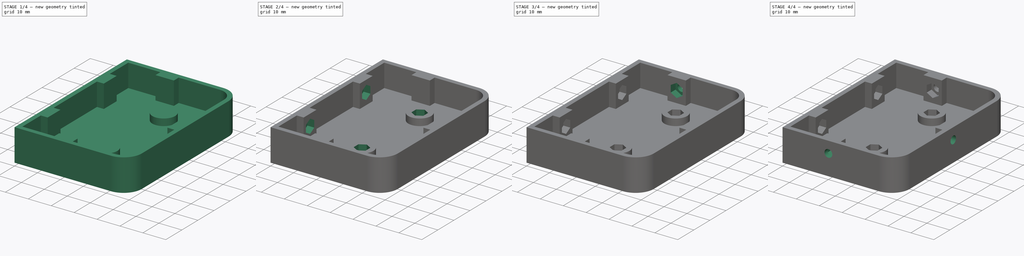
[diagram: build sequence overview — one tinted view per stage of 4, left to right]
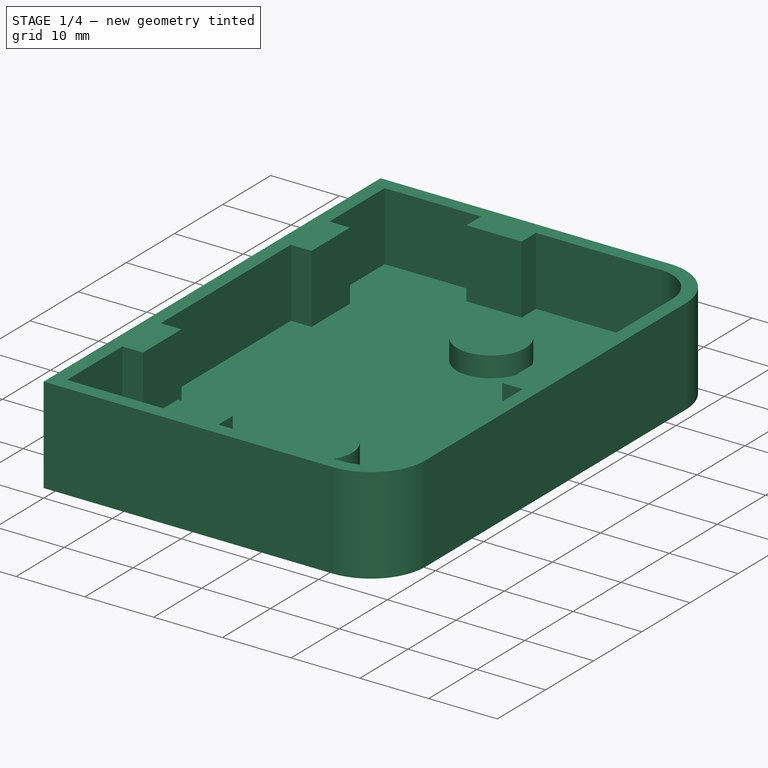
[diagram: stage 1 of 4 — iso view after this stage's code; geometry added in this stage tinted green]
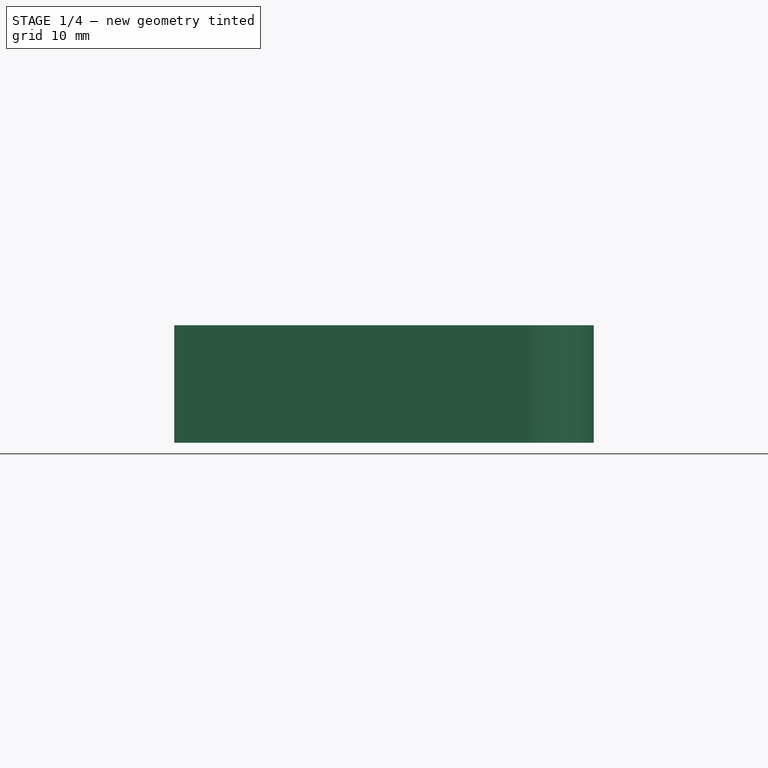
[diagram: stage 1 of 4 — front view after this stage's code; geometry added in this stage tinted green]
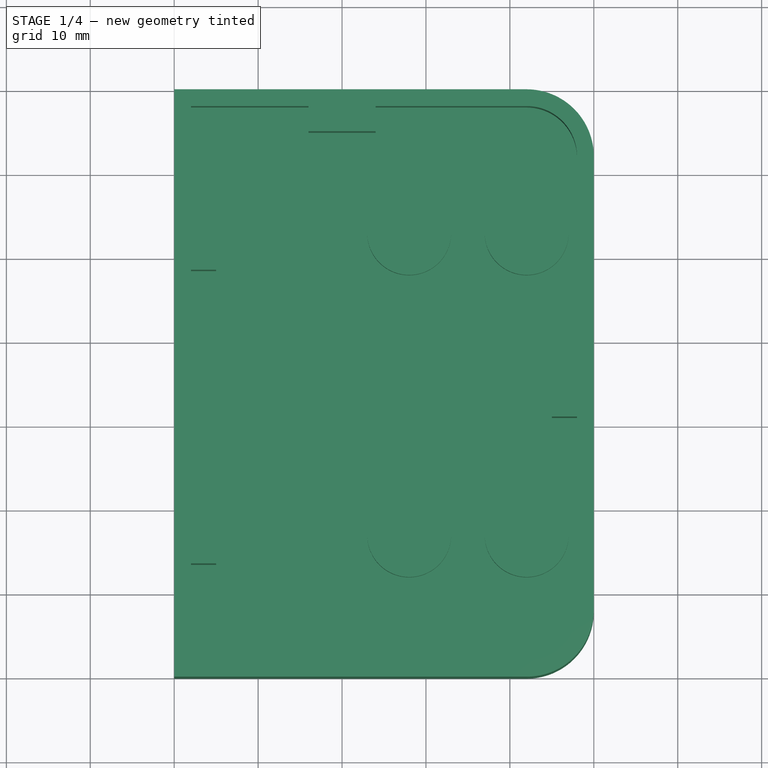
[diagram: stage 1 of 4 — top view after this stage's code; geometry added in this stage tinted green]
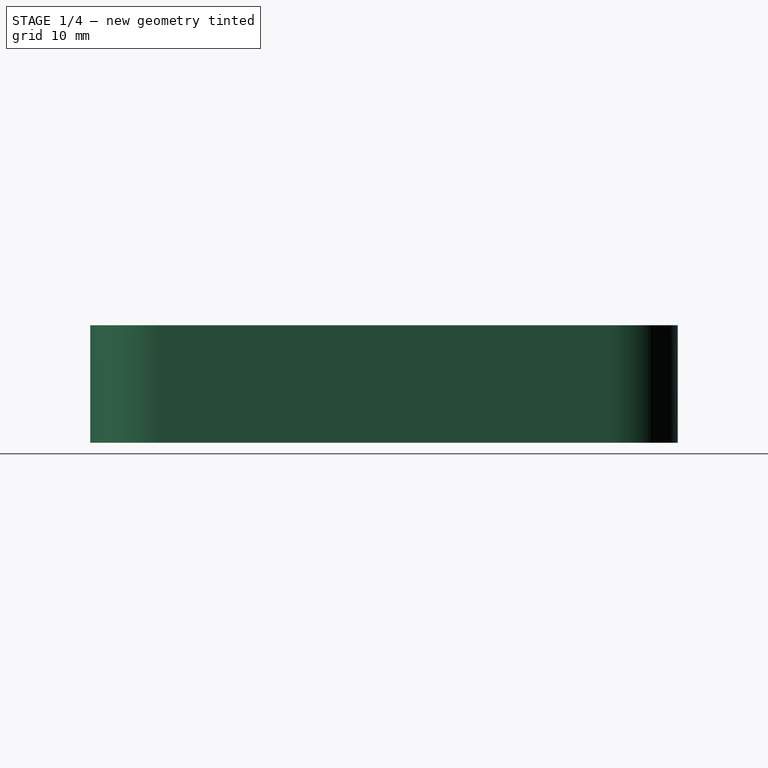
[diagram: stage 1 of 4 — right view after this stage's code; geometry added in this stage tinted green]
FCSTD DOCUMENT  (FreeCAD 0.16R5351 (Git))
Label: MotorControlChassisA
License: All rights reserved
LicenseURL: http://en.wikipedia.org/wiki/All_rights_reserved
objects: Sketcher::SketchObject×13, PartDesign::Pocket×10, PartDesign::Pad×3
note: 39 computed .brp shape members not serialized (recipe doc carries the construction recipe); baked Part::Feature solids carry a one-line shape summary decoded from their .brp

FEATURE [Sketcher::SketchObject] Sketch
  sketch-geometry (9):
    g0: LineSegment StartX=0 StartY=0 StartZ=0 EndX=42 EndY=0 EndZ=0
    g1: LineSegment [constr] StartX=42 StartY=0 StartZ=0 EndX=42 EndY=70 EndZ=0
    g2: LineSegment StartX=42 StartY=70 StartZ=0 EndX=0 EndY=70 EndZ=0
    g3: LineSegment StartX=0 StartY=70 StartZ=0 EndX=0 EndY=0 EndZ=0
    g4: ArcOfCircle CenterX=42 CenterY=62 CenterZ=0 NormalX=0 NormalY=0 NormalZ=1 Radius=8 StartAngle=0 EndAngle=1.5708
    g5: ArcOfCircle CenterX=42 CenterY=8 CenterZ=0 NormalX=0 NormalY=0 NormalZ=1 Radius=8 StartAngle=4.71239 EndAngle=6.28319
    g6: LineSegment StartX=50 StartY=62 StartZ=0 EndX=50 EndY=8 EndZ=0
    g7: LineSegment [constr] StartX=42 StartY=62 StartZ=0 EndX=50 EndY=62 EndZ=0
    g8: LineSegment [constr] StartX=42 StartY=8 StartZ=0 EndX=50 EndY=8 EndZ=0
  constraints (25):
    c: Coincident(g0,g1)
    c: Coincident(g1,g2)
    c: Coincident(g2,g3)
    c: Coincident(g3,g0)
    c: Horizontal(g0)
    c: Horizontal(g2)
    c: Vertical(g1)
    c: Vertical(g3)
    c: Coincident(g0,g-1)
    c: PointOnObject(g4,g1)
    c: Coincident(g4,g1)
    c: PointOnObject(g5,g1)
    c: Coincident(g5,g0)
    c: Coincident(g6,g4)
    c: Coincident(g6,g5)
    c: Vertical(g6)
    c: Coincident(g7,g4)
    c: Coincident(g7,g4)
    c: Horizontal(g7)
    c: Coincident(g8,g5)
    c: Coincident(g8,g5)
    c: Horizontal(g8)
    c: DistanceX(g-1,g5) = 50
    c: Radius(g5) = 8
    c: DistanceY(g3) = -70
FEATURE [PartDesign::Pad] Pad
  Length = 4
  Length2 = 100
  Sketch = -> Sketch
  Type = 0
FEATURE [Sketcher::SketchObject] Sketch001
  Placement = pos=(0,0,4) rot=(0,0,1;0rad)
  Support = -> Pad [Face8]
  sketch-geometry (41):
    g0: LineSegment StartX=0 StartY=0 StartZ=0 EndX=42 EndY=0 EndZ=0
    g1: LineSegment [constr] StartX=42 StartY=0 StartZ=0 EndX=42 EndY=70 EndZ=0
    g2: LineSegment StartX=42 StartY=70 StartZ=0 EndX=0 EndY=70 EndZ=0
    g3: LineSegment StartX=0 StartY=70 StartZ=0 EndX=0 EndY=0 EndZ=0
    g4: ArcOfCircle CenterX=42 CenterY=62 CenterZ=0 NormalX=0 NormalY=0 NormalZ=1 Radius=8 StartAngle=0 EndAngle=1.5708
    g5: ArcOfCircle CenterX=42 CenterY=8 CenterZ=0 NormalX=0 NormalY=0 NormalZ=1 Radius=8 StartAngle=4.71239 EndAngle=6.28319
    g6: LineSegment StartX=50 StartY=62 StartZ=0 EndX=50 EndY=8 EndZ=0
    g7: LineSegment [constr] StartX=42 StartY=62 StartZ=0 EndX=50 EndY=62 EndZ=0
    g8: LineSegment [constr] StartX=42 StartY=8 StartZ=0 EndX=50 EndY=8 EndZ=0
    g9: ArcOfCircle CenterX=42 CenterY=62 CenterZ=0 NormalX=0 NormalY=0 NormalZ=1 Radius=6 StartAngle=0 EndAngle=1.5708
    g10: ArcOfCircle CenterX=42 CenterY=8 CenterZ=0 NormalX=0 NormalY=0 NormalZ=1 Radius=6 StartAngle=4.71239 EndAngle=6.28319
    g11: LineSegment StartX=42 StartY=68 StartZ=0 EndX=24 EndY=68 EndZ=0
    g12: LineSegment StartX=24 StartY=68 StartZ=0 EndX=24 EndY=65 EndZ=0
    g13: LineSegment StartX=24 StartY=65 StartZ=0 EndX=16 EndY=65 EndZ=0
    g14: LineSegment StartX=16 StartY=65 StartZ=0 EndX=16 EndY=68 EndZ=0
    g15: LineSegment StartX=16 StartY=68 StartZ=0 EndX=2 EndY=68 EndZ=0
    g16: LineSegment StartX=2 StartY=68 StartZ=0 EndX=2 EndY=56.5 EndZ=0
    g17: LineSegment StartX=2 StartY=56.5 StartZ=0 EndX=5 EndY=56.5 EndZ=0
    g18: LineSegment StartX=5 StartY=56.5 StartZ=0 EndX=5 EndY=48.5 EndZ=0
    g19: LineSegment StartX=5 StartY=48.5 StartZ=0 EndX=2 EndY=48.5 EndZ=0
    g20: LineSegment StartX=2 StartY=48.5 StartZ=0 EndX=2 EndY=21.5 EndZ=0
    g21: LineSegment StartX=2 StartY=21.5 StartZ=0 EndX=5 EndY=21.5 EndZ=0
    g22: LineSegment StartX=5 StartY=21.5 StartZ=0 EndX=5 EndY=13.5 EndZ=0
    g23: LineSegment StartX=5 StartY=13.5 StartZ=0 EndX=2 EndY=13.5 EndZ=0
    g24: LineSegment StartX=2 StartY=13.5 StartZ=0 EndX=2 EndY=2 EndZ=0
    g25: LineSegment StartX=2 StartY=2 StartZ=0 EndX=16 EndY=2 EndZ=0
    g26: LineSegment StartX=16 StartY=2 StartZ=0 EndX=16 EndY=5 EndZ=0
    g27: LineSegment StartX=16 StartY=5 StartZ=0 EndX=24 EndY=5 EndZ=0
    g28: LineSegment StartX=24 StartY=5 StartZ=0 EndX=24 EndY=2 EndZ=0
    g29: LineSegment StartX=24 StartY=2 StartZ=0 EndX=42 EndY=2 EndZ=0
    g30: LineSegment StartX=48 StartY=62 StartZ=0 EndX=48 EndY=39 EndZ=0
    g31: LineSegment StartX=48 StartY=39 StartZ=0 EndX=45 EndY=39 EndZ=0
    g32: LineSegment StartX=45 StartY=39 StartZ=0 EndX=45 EndY=31 EndZ=0
    g33: LineSegment StartX=45 StartY=31 StartZ=0 EndX=48 EndY=31 EndZ=0
    g34: LineSegment StartX=48 StartY=31 StartZ=0 EndX=48 EndY=8 EndZ=0
    g35: LineSegment [constr] StartX=24 StartY=68 StartZ=0 EndX=20 EndY=68 EndZ=0
    g36: LineSegment [constr] StartX=20 StartY=68 StartZ=0 EndX=16 EndY=68 EndZ=0
    g37: LineSegment [constr] StartX=2 StartY=56.5 StartZ=0 EndX=2 EndY=52.5 EndZ=0
    g38: LineSegment [constr] StartX=2 StartY=52.5 StartZ=0 EndX=2 EndY=48.5 EndZ=0
    g39: LineSegment [constr] StartX=2 StartY=21.5 StartZ=0 EndX=2 EndY=17.5 EndZ=0
    g40: LineSegment [constr] StartX=2 StartY=17.5 StartZ=0 EndX=2 EndY=13.5 EndZ=0
  constraints (118):
    c: Coincident(g0,g1)
    c: Coincident(g1,g2)
    c: Coincident(g2,g3)
    c: Coincident(g3,g0)
    c: Horizontal(g0)
    c: Horizontal(g2)
    c: Vertical(g1)
    c: Vertical(g3)
    c: Coincident(g0,g-1)
    c: PointOnObject(g4,g1)
    c: Coincident(g4,g1)
    c: PointOnObject(g5,g1)
    c: Coincident(g5,g0)
    c: Coincident(g6,g4)
    c: Coincident(g6,g5)
    c: Vertical(g6)
    c: Coincident(g7,g4)
    c: Coincident(g7,g4)
    c: Horizontal(g7)
    c: Coincident(g8,g5)
    c: Coincident(g8,g5)
    c: Horizontal(g8)
    c: DistanceX(g-1,g5) = 50
    c: Radius(g5) = 8
    c: DistanceY(g3) = -70
    c: PointOnObject(g10,g1)
    c: PointOnObject(g9,g1)
    c: Coincident(g9,g4)
    c: PointOnObject(g9,g7)
    c: Coincident(g10,g5)
    c: PointOnObject(g10,g8)
    c: Horizontal(g11)
    c: Coincident(g11,g12)
    c: Vertical(g12)
    c: Coincident(g12,g13)
    c: Horizontal(g13)
    c: Coincident(g13,g14)
    c: Vertical(g14)
    c: Coincident(g14,g15)
    c: Horizontal(g15)
    c: Coincident(g15,g16)
    c: Vertical(g16)
    c: Coincident(g16,g17)
    c: Horizontal(g17)
    c: Coincident(g17,g18)
    c: Vertical(g18)
    c: Coincident(g18,g19)
    c: Horizontal(g19)
    c: Coincident(g19,g20)
    c: Vertical(g20)
    c: Coincident(g20,g21)
    c: Horizontal(g21)
    c: Coincident(g21,g22)
    c: Vertical(g22)
    c: Coincident(g22,g23)
    c: Horizontal(g23)
    c: Coincident(g23,g24)
    c: Vertical(g24)
    c: Coincident(g24,g25)
    c: Horizontal(g25)
    c: Coincident(g25,g26)
    c: Vertical(g26)
    c: Coincident(g26,g27)
    c: Horizontal(g27)
    c: Coincident(g27,g28)
    c: Vertical(g28)
    c: Coincident(g28,g29)
    c: Horizontal(g29)
    c: Coincident(g10,g29)
    c: Coincident(g9,g11)
    c: Equal(g12,g14)
    c: Equal(g14,g17)
    c: Equal(g17,g19)
    c: Equal(g19,g21)
    c: Equal(g21,g23)
    c: Equal(g23,g26)
    c: Equal(g26,g28)
    c: DistanceX(g-1,g24) = 2
    c: DistanceY(g-1,g24) = 2
    c: Vertical(g30)
    c: Coincident(g30,g31)
    c: Horizontal(g31)
    c: Coincident(g31,g32)
    c: Vertical(g32)
    c: Coincident(g32,g33)
    c: Horizontal(g33)
    c: Coincident(g33,g34)
    c: Vertical(g34)
    c: Coincident(g34,g10)
    c: Coincident(g9,g30)
    c: Equal(g30,g34)
    c: Equal(g12,g31)
    c: Equal(g31,g33)
    c: Equal(g32,g13)
    c: Equal(g13,g18)
    c: Equal(g18,g22)
    c: Equal(g22,g27)
    c: Equal(g16,g24)
    c: Equal(g25,g15)
    c: Coincident(g11,g35)
    c: Horizontal(g35)
    c: Coincident(g35,g36)
    c: Coincident(g36,g14)
    c: Equal(g36,g35)
    c: Coincident(g16,g37)
    c: Vertical(g37)
    c: Coincident(g37,g38)
    c: Coincident(g38,g19)
    c: Equal(g38,g37)
    c: DistanceX(g13) = -8
    c: Coincident(g20,g39)
    c: Vertical(g39)
    c: Coincident(g39,g40)
    c: Coincident(g40,g23)
    c: Equal(g40,g39)
    c: DistanceY(g37,g39) = -35
    c: DistanceX(g35) = 20
    c: DistanceY(g14) = 3
FEATURE [PartDesign::Pad] Pad001
  Length = 10
  Length2 = 100
  Sketch = -> Sketch001
  Type = 0
FEATURE [Sketcher::SketchObject] Sketch002
  Placement = pos=(0,0,4) rot=(0,0,1;0rad)
  Support = -> Pad001 [Face41]
  sketch-geometry (10):
    g0: Circle CenterX=28 CenterY=53 CenterZ=0 NormalX=0 NormalY=0 NormalZ=1 Radius=5
    g1: Circle CenterX=42 CenterY=53 CenterZ=0 NormalX=0 NormalY=0 NormalZ=1 Radius=5
    g2: Circle CenterX=28 CenterY=17 CenterZ=0 NormalX=0 NormalY=0 NormalZ=1 Radius=5
    g3: Circle CenterX=42 CenterY=17 CenterZ=0 NormalX=0 NormalY=0 NormalZ=1 Radius=5
    g4: LineSegment [constr] StartX=28 StartY=53 StartZ=0 EndX=42 EndY=53 EndZ=0
    g5: LineSegment [constr] StartX=42 StartY=53 StartZ=0 EndX=42 EndY=17 EndZ=0
    g6: LineSegment [constr] StartX=42 StartY=17 StartZ=0 EndX=28 EndY=17 EndZ=0
    g7: LineSegment [constr] StartX=28 StartY=53 StartZ=0 EndX=28 EndY=35 EndZ=0
    g8: LineSegment [constr] StartX=28 StartY=35 StartZ=0 EndX=28 EndY=17 EndZ=0
    g9: LineSegment [constr] StartX=42 StartY=17 StartZ=0 EndX=50 EndY=17 EndZ=0
  constraints (26):
    c: Coincident(g4,g0)
    c: Coincident(g4,g1)
    c: Horizontal(g4)
    c: Coincident(g4,g5)
    c: Coincident(g5,g3)
    c: Coincident(g5,g6)
    c: Coincident(g6,g2)
    c: Horizontal(g6)
    c: Vertical(g5)
    c: Equal(g1,g0)
    c: Equal(g0,g2)
    c: Equal(g2,g3)
    c: DistanceX(g4) = 14
    c: Coincident(g7,g0)
    c: Vertical(g7)
    c: Coincident(g7,g8)
    c: Coincident(g8,g2)
    c: Vertical(g8)
    c: Equal(g7,g8)
    c: DistanceY(g7) = 35
    c: DistanceY(g0,g2) = -36
    c: Coincident(g9,g3)
    c: Horizontal(g9)
    c: DistanceX(g9) = 8
    c: DistanceX(g9) = 50
    c: Radius(g2) = 5
FEATURE [PartDesign::Pad] Pad002
  Length = 3
  Length2 = 100
  Sketch = -> Sketch002
  Type = 0
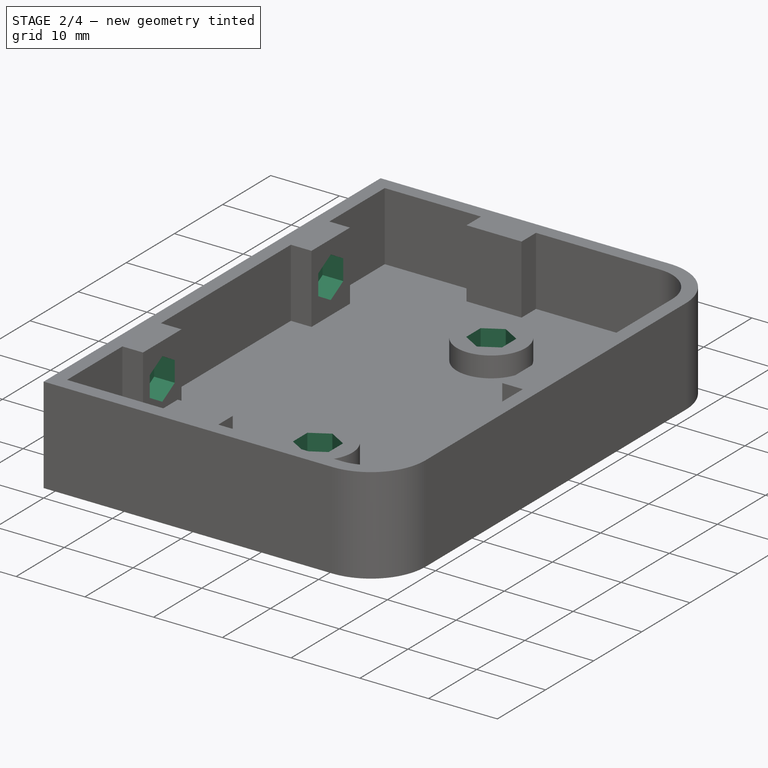
[diagram: stage 2 of 4 — iso view after this stage's code; geometry added in this stage tinted green]
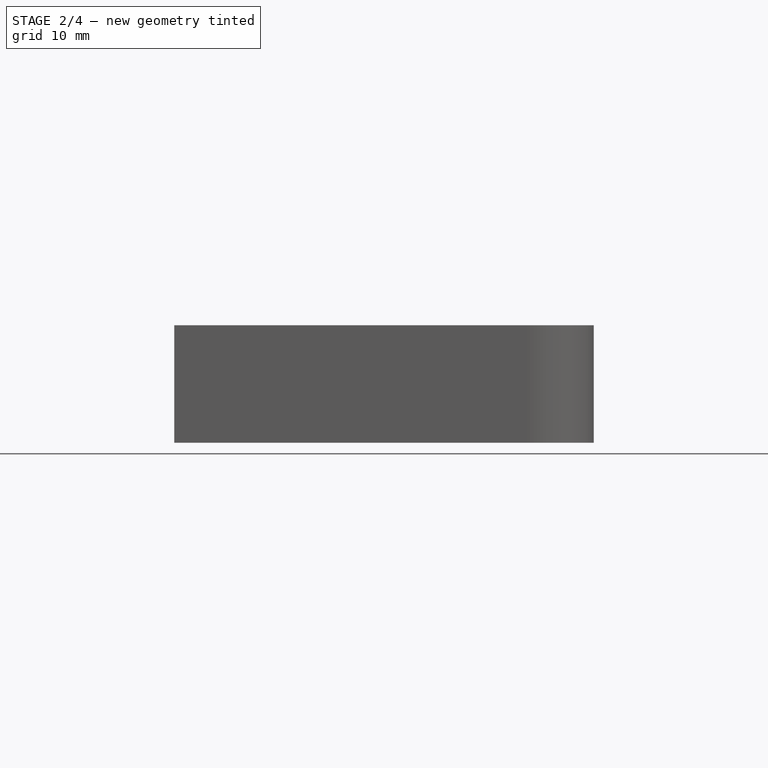
[diagram: stage 2 of 4 — front view after this stage's code; geometry added in this stage tinted green]
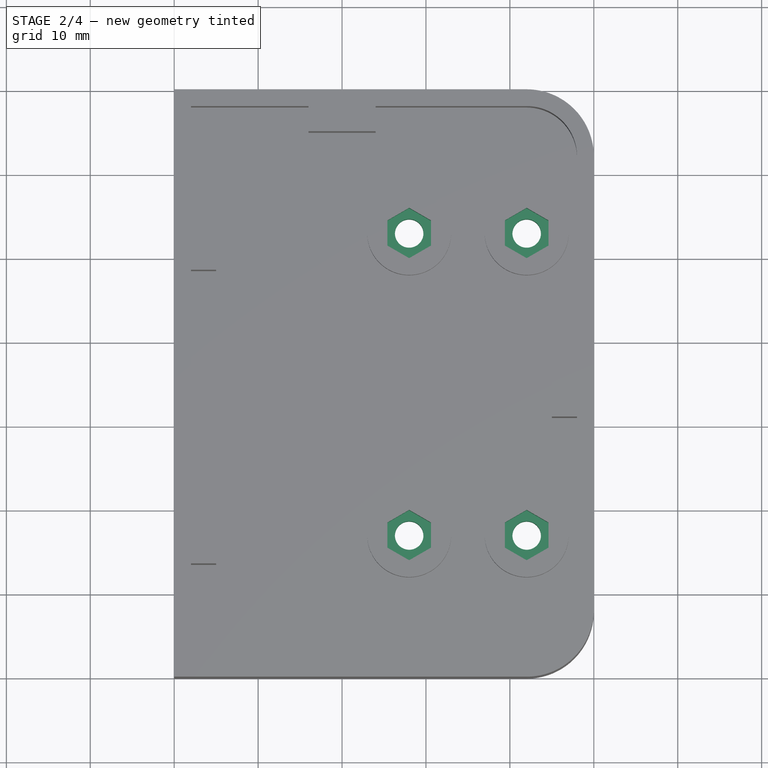
[diagram: stage 2 of 4 — top view after this stage's code; geometry added in this stage tinted green]
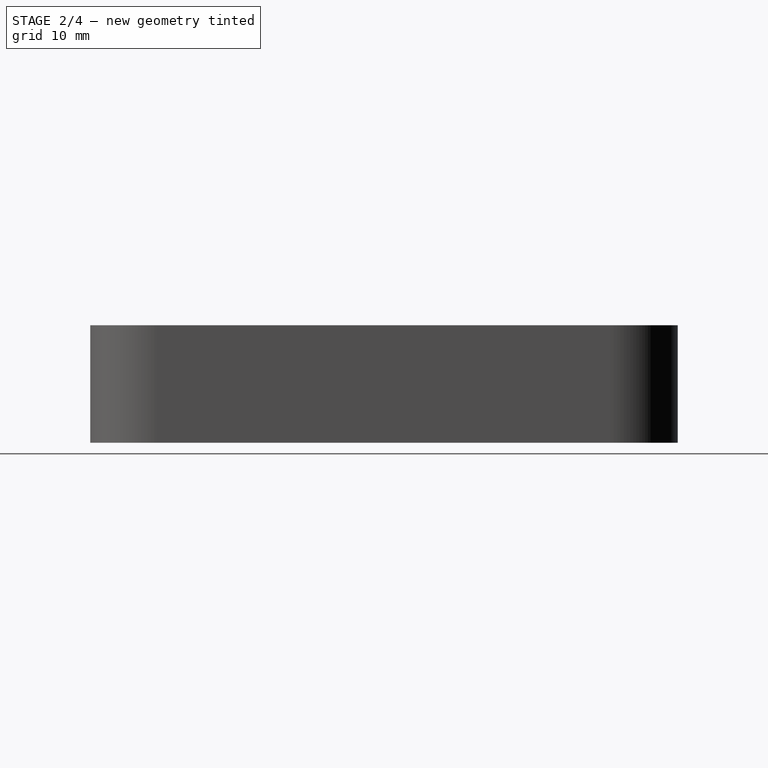
[diagram: stage 2 of 4 — right view after this stage's code; geometry added in this stage tinted green]
FEATURE [Sketcher::SketchObject] Sketch003
  Placement = pos=(0,0,7) rot=(0,0,1;0rad)
  Support = -> Pad002 [Face47]
  sketch-geometry (34):
    g0: LineSegment [constr] StartX=28 StartY=53 StartZ=0 EndX=42 EndY=53 EndZ=0
    g1: LineSegment [constr] StartX=42 StartY=53 StartZ=0 EndX=42 EndY=17 EndZ=0
    g2: LineSegment [constr] StartX=42 StartY=17 StartZ=0 EndX=28 EndY=17 EndZ=0
    g3: LineSegment [constr] StartX=28 StartY=53 StartZ=0 EndX=28 EndY=35 EndZ=0
    g4: LineSegment [constr] StartX=28 StartY=35 StartZ=0 EndX=28 EndY=17 EndZ=0
    g5: LineSegment [constr] StartX=42 StartY=17 StartZ=0 EndX=50 EndY=17 EndZ=0
    g6: LineSegment StartX=28 StartY=50 StartZ=0 EndX=30.5981 EndY=51.5 EndZ=0
    g7: LineSegment StartX=30.5981 StartY=51.5 StartZ=0 EndX=30.5981 EndY=54.5 EndZ=0
    g8: LineSegment StartX=30.5981 StartY=54.5 StartZ=0 EndX=28 EndY=56 EndZ=0
    g9: LineSegment StartX=28 StartY=56 StartZ=0 EndX=25.4019 EndY=54.5 EndZ=0
    g10: LineSegment StartX=25.4019 StartY=54.5 StartZ=0 EndX=25.4019 EndY=51.5 EndZ=0
    g11: LineSegment StartX=25.4019 StartY=51.5 StartZ=0 EndX=28 EndY=50 EndZ=0
    g12: Circle [constr] CenterX=28 CenterY=53 CenterZ=0 NormalX=0 NormalY=0 NormalZ=1 Radius=3
    g13: LineSegment StartX=30.5981 StartY=15.5 StartZ=0 EndX=30.5981 EndY=18.5 EndZ=0
    g14: LineSegment StartX=30.5981 StartY=18.5 StartZ=0 EndX=28 EndY=20 EndZ=0
    g15: LineSegment StartX=28 StartY=20 StartZ=0 EndX=25.4019 EndY=18.5 EndZ=0
    g16: LineSegment StartX=25.4019 StartY=18.5 StartZ=0 EndX=25.4019 EndY=15.5 EndZ=0
    g17: LineSegment StartX=25.4019 StartY=15.5 StartZ=0 EndX=28 EndY=14 EndZ=0
    g18: LineSegment StartX=28 StartY=14 StartZ=0 EndX=30.5981 EndY=15.5 EndZ=0
    g19: Circle [constr] CenterX=28 CenterY=17 CenterZ=0 NormalX=0 NormalY=0 NormalZ=1 Radius=3
    g20: LineSegment StartX=44.5981 StartY=51.5 StartZ=0 EndX=44.5981 EndY=54.5 EndZ=0
    g21: LineSegment StartX=44.5981 StartY=54.5 StartZ=0 EndX=42 EndY=56 EndZ=0
    g22: LineSegment StartX=42 StartY=56 StartZ=0 EndX=39.4019 EndY=54.5 EndZ=0
    g23: LineSegment StartX=39.4019 StartY=54.5 StartZ=0 EndX=39.4019 EndY=51.5 EndZ=0
    g24: LineSegment StartX=39.4019 StartY=51.5 StartZ=0 EndX=42 EndY=50 EndZ=0
    g25: LineSegment StartX=42 StartY=50 StartZ=0 EndX=44.5981 EndY=51.5 EndZ=0
    g26: Circle [constr] CenterX=42 CenterY=53 CenterZ=0 NormalX=0 NormalY=0 NormalZ=1 Radius=3
    g27: LineSegment StartX=44.5981 StartY=15.5 StartZ=0 EndX=44.5981 EndY=18.5 EndZ=0
    g28: LineSegment StartX=44.5981 StartY=18.5 StartZ=0 EndX=42 EndY=20 EndZ=0
    g29: LineSegment StartX=42 StartY=20 StartZ=0 EndX=39.4019 EndY=18.5 EndZ=0
    g30: LineSegment StartX=39.4019 StartY=18.5 StartZ=0 EndX=39.4019 EndY=15.5 EndZ=0
    g31: LineSegment StartX=39.4019 StartY=15.5 StartZ=0 EndX=42 EndY=14 EndZ=0
    g32: LineSegment StartX=42 StartY=14 StartZ=0 EndX=44.5981 EndY=15.5 EndZ=0
    g33: Circle [constr] CenterX=42 CenterY=17 CenterZ=0 NormalX=0 NormalY=0 NormalZ=1 Radius=3
  constraints (82):
    c: Horizontal(g0)
    c: Coincident(g0,g1)
    c: Coincident(g1,g2)
    c: Horizontal(g2)
    c: Vertical(g1)
    c: DistanceX(g0) = 14
    c: Vertical(g3)
    c: Coincident(g3,g4)
    c: Vertical(g4)
    c: Equal(g3,g4)
    c: DistanceY(g3) = 35
    c: Horizontal(g5)
    c: DistanceX(g5) = 8
    c: DistanceX(g5) = 50
    c: Coincident(g6,g7)
    c: Coincident(g7,g8)
    c: Coincident(g8,g9)
    c: Coincident(g9,g10)
    c: Coincident(g10,g11)
    c: Coincident(g11,g6)
    c: Equal(g6, g7-g11) x5
    c: PointOnObject(g6,g12)
    c: PointOnObject(g7,g12)
    c: PointOnObject(g8,g12)
    c: PointOnObject(g9,g12)
    c: PointOnObject(g10,g12)
    c: PointOnObject(g11,g12)
    c: Coincident(g13,g14)
    c: Coincident(g14,g15)
    c: Coincident(g15,g16)
    c: Coincident(g16,g17)
    c: Coincident(g17,g18)
    c: Coincident(g18,g13)
    c: Equal(g13, g14-g18) x5
    c: PointOnObject(g13,g19)
    c: PointOnObject(g14,g19)
    c: PointOnObject(g15,g19)
    c: PointOnObject(g16,g19)
    c: PointOnObject(g17,g19)
    c: PointOnObject(g18,g19)
    c: Coincident(g20,g21)
    c: Coincident(g21,g22)
    c: Coincident(g22,g23)
    c: Coincident(g23,g24)
    c: Coincident(g24,g25)
    c: Coincident(g25,g20)
    c: Equal(g20, g21-g25) x5
    c: PointOnObject(g20,g26)
    c: PointOnObject(g21,g26)
    c: PointOnObject(g22,g26)
    c: PointOnObject(g23,g26)
    c: PointOnObject(g24,g26)
    c: PointOnObject(g25,g26)
    c: Coincident(g27,g28)
    c: Coincident(g28,g29)
    c: Coincident(g29,g30)
    c: Coincident(g30,g31)
    c: Coincident(g31,g32)
    c: Coincident(g32,g27)
    c: Equal(g27, g28-g32) x5
    c: PointOnObject(g27,g33)
    c: PointOnObject(g28,g33)
    c: PointOnObject(g29,g33)
    c: PointOnObject(g30,g33)
    c: PointOnObject(g31,g33)
    c: PointOnObject(g32,g33)
    c: Vertical(g30)
    c: Vertical(g23)
    c: Vertical(g16)
    c: Vertical(g10)
    c: Equal(g12,g19)
    c: Equal(g19,g26)
    c: Equal(g26,g33)
    c: Radius(g33) = 3
    c: Coincident(g12,g0)
    c: Coincident(g0,g3)
    c: Coincident(g4,g2)
    c: Coincident(g5,g1)
    c: DistanceY(g0,g2) = -36
    c: Coincident(g19,g2)
    c: Coincident(g26,g0)
    c: Coincident(g33,g1)
FEATURE [PartDesign::Pocket] Pocket
  Length = 3
  Sketch = -> Sketch003
  Type = 0
FEATURE [Sketcher::SketchObject] Sketch004
  Placement = pos=(0,0,4) rot=(0,0,1;0rad)
  Support = -> Pocket [Face41]
  sketch-geometry (10):
    g0: Circle CenterX=28 CenterY=53 CenterZ=0 NormalX=0 NormalY=0 NormalZ=1 Radius=1.7
    g1: Circle CenterX=42 CenterY=53 CenterZ=0 NormalX=0 NormalY=0 NormalZ=1 Radius=1.7
    g2: Circle CenterX=28 CenterY=17 CenterZ=0 NormalX=0 NormalY=0 NormalZ=1 Radius=1.7
    g3: Circle CenterX=42 CenterY=17 CenterZ=0 NormalX=0 NormalY=0 NormalZ=1 Radius=1.7
    g4: LineSegment [constr] StartX=28 StartY=53 StartZ=0 EndX=42 EndY=53 EndZ=0
    g5: LineSegment [constr] StartX=42 StartY=53 StartZ=0 EndX=42 EndY=17 EndZ=0
    g6: LineSegment [constr] StartX=42 StartY=17 StartZ=0 EndX=28 EndY=17 EndZ=0
    g7: LineSegment [constr] StartX=28 StartY=53 StartZ=0 EndX=28 EndY=35 EndZ=0
    g8: LineSegment [constr] StartX=28 StartY=35 StartZ=0 EndX=28 EndY=17 EndZ=0
    g9: LineSegment [constr] StartX=42 StartY=17 StartZ=0 EndX=50 EndY=17 EndZ=0
  constraints (26):
    c: Coincident(g4,g0)
    c: Coincident(g4,g1)
    c: Horizontal(g4)
    c: Coincident(g4,g5)
    c: Coincident(g5,g3)
    c: Coincident(g5,g6)
    c: Coincident(g6,g2)
    c: Horizontal(g6)
    c: Vertical(g5)
    c: Equal(g1,g0)
    c: Equal(g0,g2)
    c: Equal(g2,g3)
    c: DistanceX(g4) = 14
    c: Coincident(g7,g0)
    c: Vertical(g7)
    c: Coincident(g7,g8)
    c: Coincident(g8,g2)
    c: Vertical(g8)
    c: Equal(g7,g8)
    c: DistanceY(g7) = 35
    c: DistanceY(g0,g2) = -36
    c: Coincident(g9,g3)
    c: Horizontal(g9)
    c: DistanceX(g9) = 8
    c: DistanceX(g9) = 50
    c: Radius(g2) = 1.7
FEATURE [PartDesign::Pocket] Pocket001
  Length = 4
  Sketch = -> Sketch004
  Type = 0
FEATURE [Sketcher::SketchObject] Sketch005
  Placement = pos=(5,0,0) rot=(0.57735,0.57735,0.57735;2.0944rad)
  Support = -> Pocket001 [Face59]
  sketch-geometry (17):
    g0: LineSegment StartX=20.0981 StartY=7.5 StartZ=0 EndX=20.0981 EndY=10.5 EndZ=0
    g1: LineSegment StartX=20.0981 StartY=10.5 StartZ=0 EndX=17.5 EndY=12 EndZ=0
    g2: LineSegment StartX=17.5 StartY=12 StartZ=0 EndX=14.9019 EndY=10.5 EndZ=0
    g3: LineSegment StartX=14.9019 StartY=10.5 StartZ=0 EndX=14.9019 EndY=7.5 EndZ=0
    g4: LineSegment StartX=14.9019 StartY=7.5 StartZ=0 EndX=17.5 EndY=6 EndZ=0
    g5: LineSegment StartX=17.5 StartY=6 StartZ=0 EndX=20.0981 EndY=7.5 EndZ=0
    g6: Circle [constr] CenterX=17.5 CenterY=9 CenterZ=0 NormalX=0 NormalY=0 NormalZ=1 Radius=3
    g7: LineSegment StartX=55.0981 StartY=7.5 StartZ=0 EndX=55.0981 EndY=10.5 EndZ=0
    g8: LineSegment StartX=55.0981 StartY=10.5 StartZ=0 EndX=52.5 EndY=12 EndZ=0
    g9: LineSegment StartX=52.5 StartY=12 StartZ=0 EndX=49.9019 EndY=10.5 EndZ=0
    g10: LineSegment StartX=49.9019 StartY=10.5 StartZ=0 EndX=49.9019 EndY=7.5 EndZ=0
    g11: LineSegment StartX=49.9019 StartY=7.5 StartZ=0 EndX=52.5 EndY=6 EndZ=0
    g12: LineSegment StartX=52.5 StartY=6 StartZ=0 EndX=55.0981 EndY=7.5 EndZ=0
    g13: Circle [constr] CenterX=52.5 CenterY=9 CenterZ=0 NormalX=0 NormalY=0 NormalZ=1 Radius=3
    g14: LineSegment [constr] StartX=0 StartY=9 StartZ=0 EndX=17.5 EndY=9 EndZ=0
    g15: LineSegment [constr] StartX=17.5 StartY=9 StartZ=0 EndX=52.5 EndY=9 EndZ=0
    g16: LineSegment [constr] StartX=52.5 StartY=9 StartZ=0 EndX=70 EndY=9 EndZ=0
  constraints (42):
    c: Coincident(g0,g1)
    c: Coincident(g1,g2)
    c: Coincident(g2,g3)
    c: Coincident(g3,g4)
    c: Coincident(g4,g5)
    c: Coincident(g5,g0)
    c: Equal(g0, g1-g5) x5
    c: PointOnObject(g0,g6)
    c: PointOnObject(g1,g6)
    c: PointOnObject(g2,g6)
    c: PointOnObject(g3,g6)
    c: PointOnObject(g4,g6)
    c: PointOnObject(g5,g6)
    c: Coincident(g7,g8)
    c: Coincident(g8,g9)
    c: Coincident(g9,g10)
    c: Coincident(g10,g11)
    c: Coincident(g11,g12)
    c: Coincident(g12,g7)
    c: Equal(g7, g8-g12) x5
    c: PointOnObject(g7,g13)
    c: PointOnObject(g8,g13)
    c: PointOnObject(g9,g13)
    c: PointOnObject(g10,g13)
    c: PointOnObject(g11,g13)
    c: PointOnObject(g12,g13)
    c: PointOnObject(g14,g-2)
    c: Horizontal(g14)
    c: Coincident(g14,g15)
    c: Horizontal(g15)
    c: Coincident(g15,g16)
    c: Horizontal(g16)
    c: Equal(g16,g14)
    c: DistanceX(g15) = 35
    c: DistanceX(g14,g16) = 70
    c: Coincident(g15,g13)
    c: Coincident(g14,g6)
    c: Vertical(g0)
    c: Vertical(g10)
    c: Equal(g13,g6)
    c: Radius(g6) = 3
    c: DistanceY(g14) = 9
FEATURE [PartDesign::Pocket] Pocket002
  Length = 3
  Sketch = -> Sketch005
  Type = 0
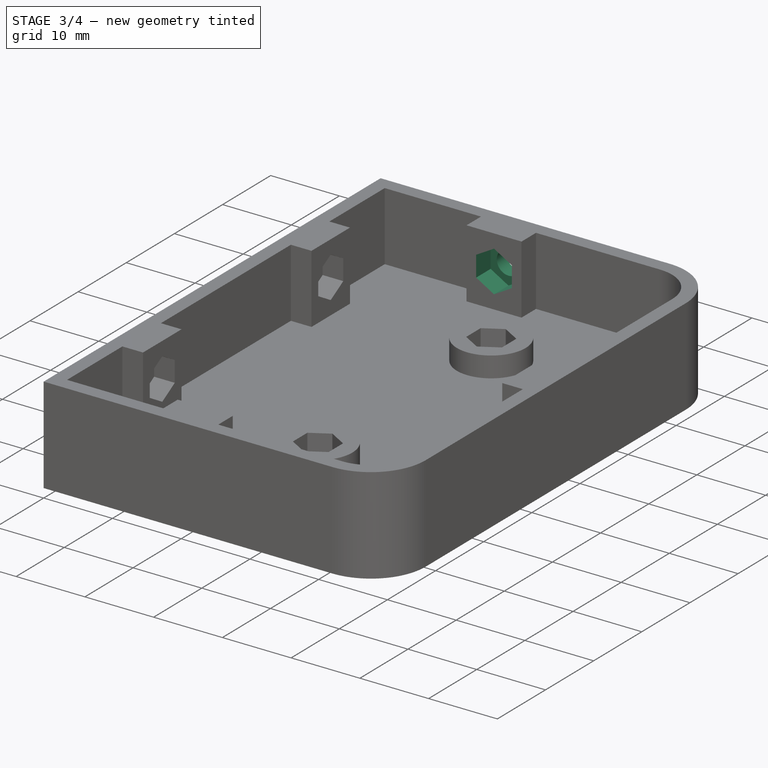
[diagram: stage 3 of 4 — iso view after this stage's code; geometry added in this stage tinted green]
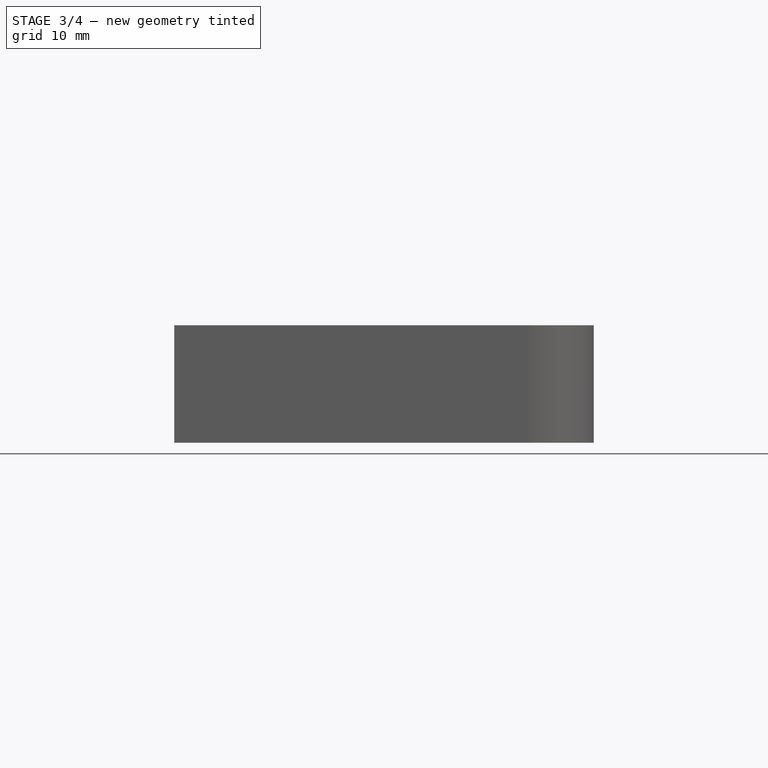
[diagram: stage 3 of 4 — front view after this stage's code; geometry added in this stage tinted green]
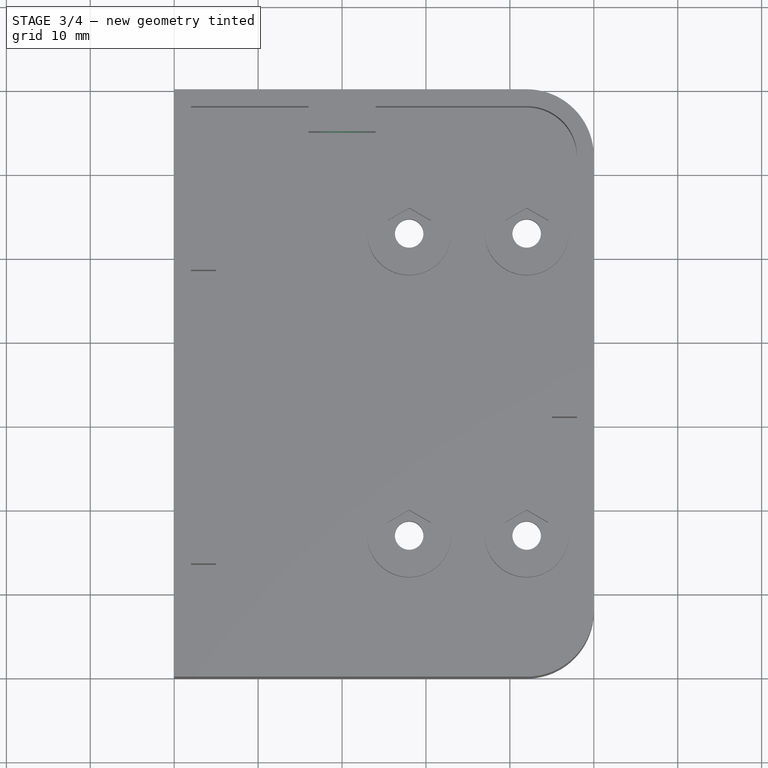
[diagram: stage 3 of 4 — top view after this stage's code; geometry added in this stage tinted green]
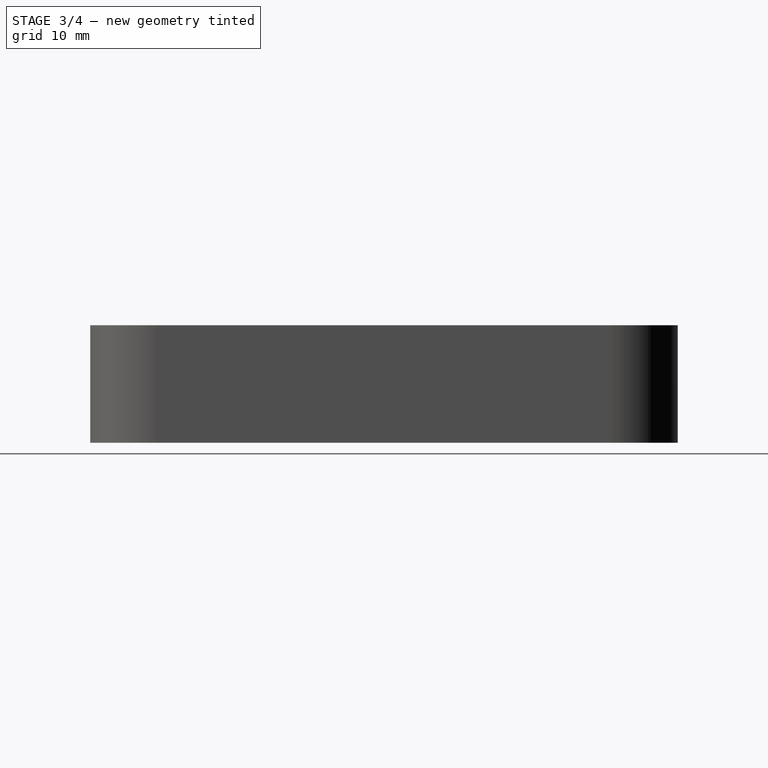
[diagram: stage 3 of 4 — right view after this stage's code; geometry added in this stage tinted green]
FEATURE [Sketcher::SketchObject] Sketch006
  Placement = pos=(2,0,0) rot=(0.57735,0.57735,0.57735;2.0944rad)
  Support = -> Pocket002 [Face95]
  sketch-geometry (5):
    g0: Circle CenterX=17.5 CenterY=9 CenterZ=0 NormalX=0 NormalY=0 NormalZ=1 Radius=1.7
    g1: Circle CenterX=52.5 CenterY=9 CenterZ=0 NormalX=0 NormalY=0 NormalZ=1 Radius=1.7
    g2: LineSegment [constr] StartX=0 StartY=9 StartZ=0 EndX=17.5 EndY=9 EndZ=0
    g3: LineSegment [constr] StartX=17.5 StartY=9 StartZ=0 EndX=52.5 EndY=9 EndZ=0
    g4: LineSegment [constr] StartX=52.5 StartY=9 StartZ=0 EndX=70 EndY=9 EndZ=0
  constraints (14):
    c: PointOnObject(g2,g-2)
    c: Horizontal(g2)
    c: Coincident(g2,g3)
    c: Horizontal(g3)
    c: Coincident(g3,g4)
    c: Horizontal(g4)
    c: Equal(g4,g2)
    c: DistanceX(g3) = 35
    c: DistanceX(g2,g4) = 70
    c: Coincident(g3,g1)
    c: Coincident(g2,g0)
    c: Equal(g1,g0)
    c: Radius(g0) = 1.7
    c: DistanceY(g2) = 9
FEATURE [PartDesign::Pocket] Pocket003
  Length = 2
  Sketch = -> Sketch006
  Type = 0
FEATURE [Sketcher::SketchObject] Sketch007
  Placement = pos=(0,65,0) rot=(1,0,0;1.5708rad)
  Support = -> Pocket003 [Face52]
  sketch-geometry (9):
    g0: LineSegment [constr] StartX=0 StartY=9 StartZ=0 EndX=20 EndY=9 EndZ=0
    g1: LineSegment [constr] StartX=20 StartY=9 StartZ=0 EndX=50 EndY=9 EndZ=0
    g2: LineSegment StartX=22.5981 StartY=7.5 StartZ=0 EndX=22.5981 EndY=10.5 EndZ=0
    g3: LineSegment StartX=22.5981 StartY=10.5 StartZ=0 EndX=20 EndY=12 EndZ=0
    g4: LineSegment StartX=20 StartY=12 StartZ=0 EndX=17.4019 EndY=10.5 EndZ=0
    g5: LineSegment StartX=17.4019 StartY=10.5 StartZ=0 EndX=17.4019 EndY=7.5 EndZ=0
    g6: LineSegment StartX=17.4019 StartY=7.5 StartZ=0 EndX=20 EndY=6 EndZ=0
    g7: LineSegment StartX=20 StartY=6 StartZ=0 EndX=22.5981 EndY=7.5 EndZ=0
    g8: Circle [constr] CenterX=20 CenterY=9 CenterZ=0 NormalX=0 NormalY=0 NormalZ=1 Radius=3
  constraints (23):
    c: PointOnObject(g0,g-2)
    c: Horizontal(g0)
    c: Coincident(g0,g1)
    c: Horizontal(g1)
    c: DistanceX(g1) = 50
    c: DistanceX(g0) = 20
    c: DistanceY(g0) = 9
    c: Coincident(g2,g3)
    c: Coincident(g3,g4)
    c: Coincident(g4,g5)
    c: Coincident(g5,g6)
    c: Coincident(g6,g7)
    c: Coincident(g7,g2)
    c: Equal(g2, g3-g7) x5
    c: PointOnObject(g2,g8)
    c: PointOnObject(g3,g8)
    c: PointOnObject(g4,g8)
    c: PointOnObject(g5,g8)
    c: PointOnObject(g6,g8)
    c: PointOnObject(g7,g8)
    c: Coincident(g8,g0)
    c: Vertical(g5)
    c: Radius(g8) = 3
FEATURE [PartDesign::Pocket] Pocket004
  Length = 3
  Sketch = -> Sketch007
  Type = 0
FEATURE [Sketcher::SketchObject] Sketch008
  Placement = pos=(0,68,0) rot=(1,0,0;1.5708rad)
  Support = -> Pocket004 [Face104]
  sketch-geometry (3):
    g0: LineSegment [constr] StartX=0 StartY=9 StartZ=0 EndX=20 EndY=9 EndZ=0
    g1: LineSegment [constr] StartX=20 StartY=9 StartZ=0 EndX=50 EndY=9 EndZ=0
    g2: Circle CenterX=20 CenterY=9 CenterZ=0 NormalX=0 NormalY=0 NormalZ=1 Radius=1.7
  constraints (9):
    c: PointOnObject(g0,g-2)
    c: Horizontal(g0)
    c: Coincident(g0,g1)
    c: Horizontal(g1)
    c: DistanceX(g1) = 50
    c: DistanceX(g0) = 20
    c: DistanceY(g0) = 9
    c: Coincident(g2,g0)
    c: Radius(g2) = 1.7
FEATURE [PartDesign::Pocket] Pocket005
  Length = 2
  Sketch = -> Sketch008
  Type = 0
FEATURE [Sketcher::SketchObject] Sketch009
  Placement = pos=(45,0,0) rot=(0.57735,-0.57735,-0.57735;2.0944rad)
  Support = -> Pocket005 [Face73]
  sketch-geometry (9):
    g0: LineSegment [constr] StartX=0 StartY=9 StartZ=0 EndX=-35 EndY=9 EndZ=0
    g1: LineSegment [constr] StartX=-35 StartY=9 StartZ=0 EndX=-70 EndY=9 EndZ=0
    g2: LineSegment StartX=-37.5981 StartY=7.5 StartZ=0 EndX=-35 EndY=6 EndZ=0
    g3: LineSegment StartX=-35 StartY=6 StartZ=0 EndX=-32.4019 EndY=7.5 EndZ=0
    g4: LineSegment StartX=-32.4019 StartY=7.5 StartZ=0 EndX=-32.4019 EndY=10.5 EndZ=0
    g5: LineSegment StartX=-32.4019 StartY=10.5 StartZ=0 EndX=-35 EndY=12 EndZ=0
    g6: LineSegment StartX=-35 StartY=12 StartZ=0 EndX=-37.5981 EndY=10.5 EndZ=0
    g7: LineSegment StartX=-37.5981 StartY=10.5 StartZ=0 EndX=-37.5981 EndY=7.5 EndZ=0
    g8: Circle [constr] CenterX=-35 CenterY=9 CenterZ=0 NormalX=0 NormalY=0 NormalZ=1 Radius=3
  constraints (23):
    c: PointOnObject(g0,g-2)
    c: Horizontal(g0)
    c: Coincident(g0,g1)
    c: Horizontal(g1)
    c: Equal(g0,g1)
    c: DistanceX(g1,g0) = 70
    c: DistanceY(g0) = 9
    c: Coincident(g2,g3)
    c: Coincident(g3,g4)
    c: Coincident(g4,g5)
    c: Coincident(g5,g6)
    c: Coincident(g6,g7)
    c: Coincident(g7,g2)
    c: Equal(g2, g3-g7) x5
    c: PointOnObject(g2,g8)
    c: PointOnObject(g3,g8)
    c: PointOnObject(g4,g8)
    c: PointOnObject(g5,g8)
    c: PointOnObject(g6,g8)
    c: PointOnObject(g7,g8)
    c: Coincident(g8,g0)
    c: Vertical(g7)
    c: Radius(g8) = 3
FEATURE [PartDesign::Pocket] Pocket006
  Length = 3
  Sketch = -> Sketch009
  Type = 0
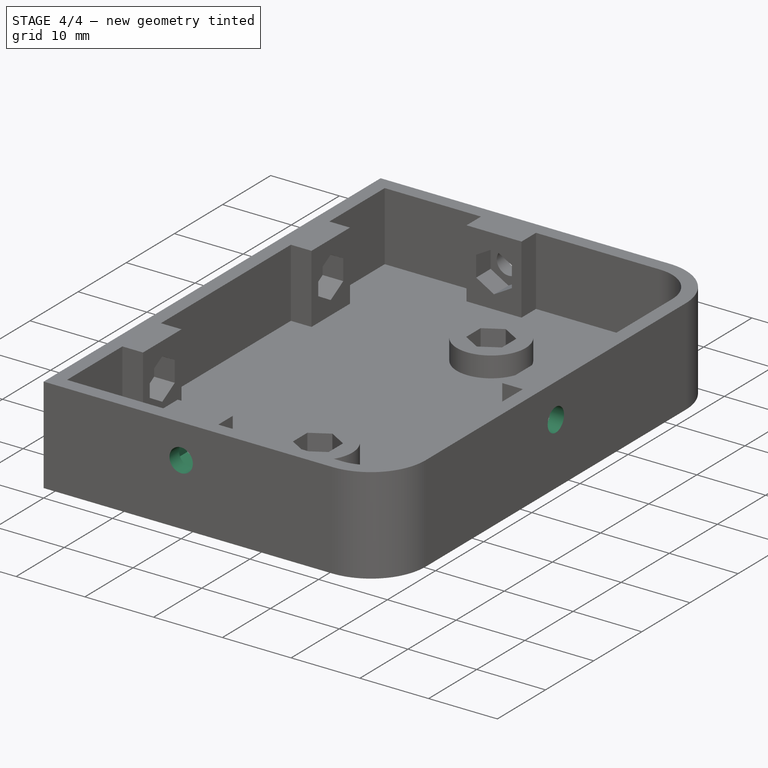
[diagram: stage 4 of 4 — iso view after this stage's code; geometry added in this stage tinted green]
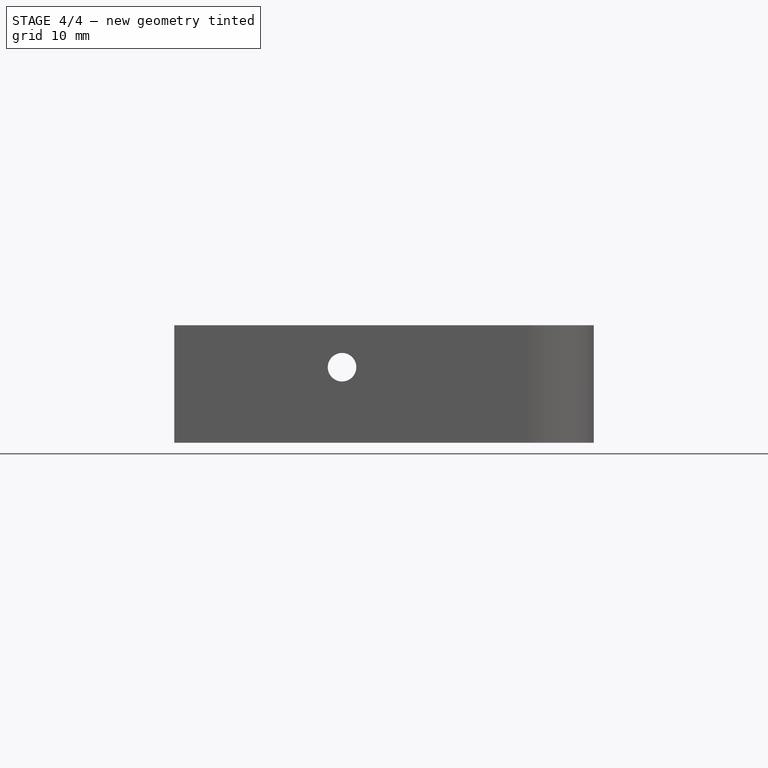
[diagram: stage 4 of 4 — front view after this stage's code; geometry added in this stage tinted green]
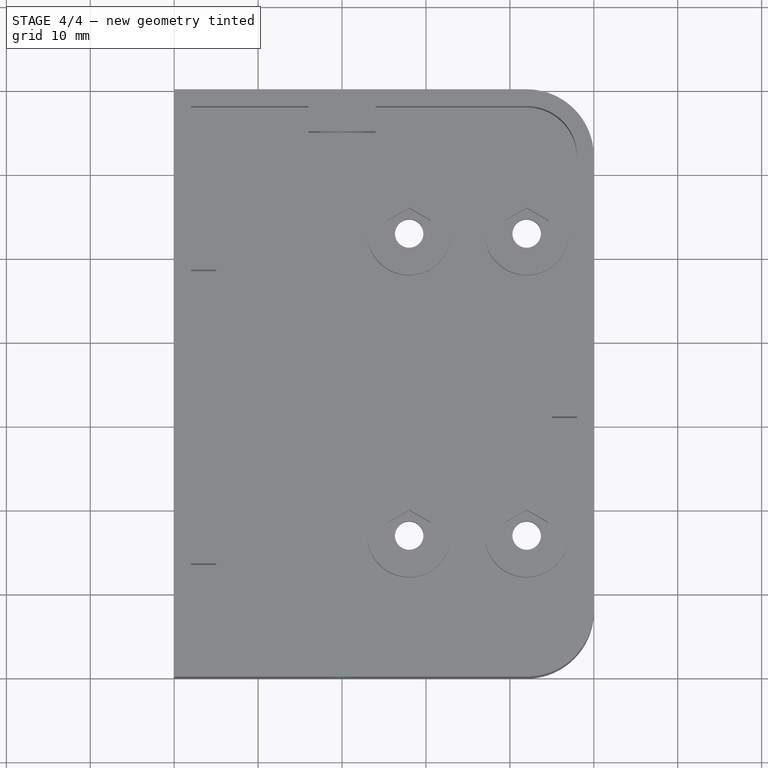
[diagram: stage 4 of 4 — top view after this stage's code; geometry added in this stage tinted green]
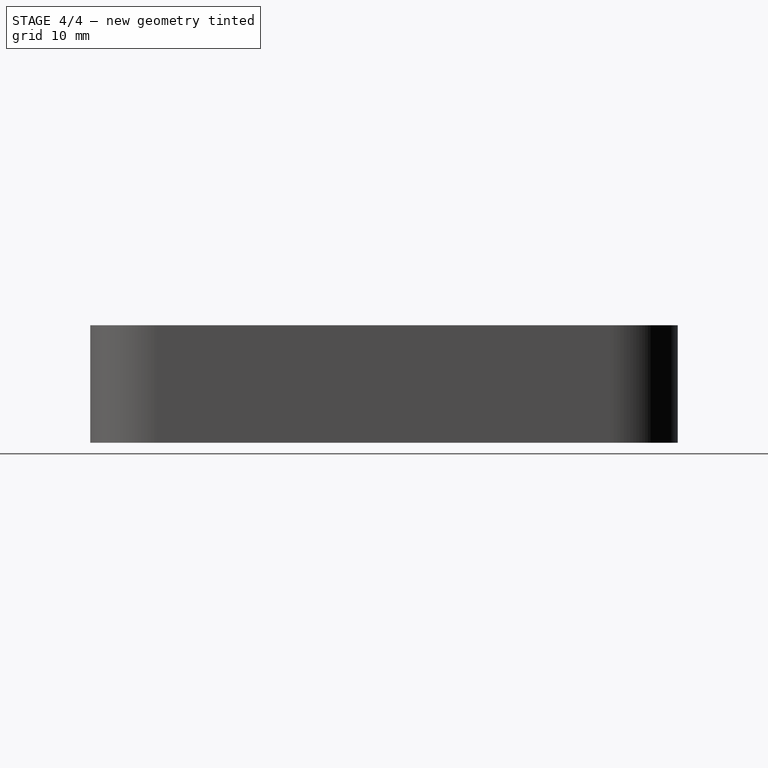
[diagram: stage 4 of 4 — right view after this stage's code; geometry added in this stage tinted green]
FEATURE [Sketcher::SketchObject] Sketch010
  Placement = pos=(48,0,0) rot=(0.57735,-0.57735,-0.57735;2.0944rad)
  Support = -> Pocket006 [Face112]
  sketch-geometry (3):
    g0: LineSegment [constr] StartX=0 StartY=9 StartZ=0 EndX=-35 EndY=9 EndZ=0
    g1: LineSegment [constr] StartX=-35 StartY=9 StartZ=0 EndX=-70 EndY=9 EndZ=0
    g2: Circle CenterX=-35 CenterY=9 CenterZ=0 NormalX=0 NormalY=0 NormalZ=1 Radius=1.7
  constraints (9):
    c: PointOnObject(g0,g-2)
    c: Horizontal(g0)
    c: Coincident(g0,g1)
    c: Horizontal(g1)
    c: Equal(g0,g1)
    c: DistanceX(g1,g0) = 70
    c: DistanceY(g0) = 9
    c: Coincident(g2,g0)
    c: Radius(g2) = 1.7
FEATURE [PartDesign::Pocket] Pocket007
  Length = 2
  Sketch = -> Sketch010
  Type = 0
FEATURE [Sketcher::SketchObject] Sketch011
  Placement = pos=(0,5,0) rot=(0,0.707107,0.707107;3.14159rad)
  Support = -> Pocket007 [Face68]
  sketch-geometry (9):
    g0: LineSegment [constr] StartX=0 StartY=9 StartZ=0 EndX=-20 EndY=9 EndZ=0
    g1: LineSegment [constr] StartX=-20 StartY=9 StartZ=0 EndX=-50 EndY=9 EndZ=0
    g2: LineSegment StartX=-17.4019 StartY=7.5 StartZ=0 EndX=-17.4019 EndY=10.5 EndZ=0
    g3: LineSegment StartX=-17.4019 StartY=10.5 StartZ=0 EndX=-20 EndY=12 EndZ=0
    g4: LineSegment StartX=-20 StartY=12 StartZ=0 EndX=-22.5981 EndY=10.5 EndZ=0
    g5: LineSegment StartX=-22.5981 StartY=10.5 StartZ=0 EndX=-22.5981 EndY=7.5 EndZ=0
    g6: LineSegment StartX=-22.5981 StartY=7.5 StartZ=0 EndX=-20 EndY=6 EndZ=0
    g7: LineSegment StartX=-20 StartY=6 StartZ=0 EndX=-17.4019 EndY=7.5 EndZ=0
    g8: Circle [constr] CenterX=-20 CenterY=9 CenterZ=0 NormalX=0 NormalY=0 NormalZ=1 Radius=3
  constraints (23):
    c: PointOnObject(g0,g-2)
    c: Horizontal(g0)
    c: Coincident(g0,g1)
    c: Horizontal(g1)
    c: DistanceX(g0) = -20
    c: DistanceX(g1) = -50
    c: Coincident(g2,g3)
    c: Coincident(g3,g4)
    c: Coincident(g4,g5)
    c: Coincident(g5,g6)
    c: Coincident(g6,g7)
    c: Coincident(g7,g2)
    c: Equal(g2, g3-g7) x5
    c: PointOnObject(g2,g8)
    c: PointOnObject(g3,g8)
    c: PointOnObject(g4,g8)
    c: PointOnObject(g5,g8)
    c: PointOnObject(g6,g8)
    c: PointOnObject(g7,g8)
    c: Coincident(g8,g0)
    c: Vertical(g5)
    c: Radius(g8) = 3
    c: DistanceY(g0) = 9
FEATURE [PartDesign::Pocket] Pocket008
  Length = 3
  Sketch = -> Sketch011
  Type = 0
FEATURE [Sketcher::SketchObject] Sketch012
  Placement = pos=(0,2,0) rot=(0,0.707107,0.707107;3.14159rad)
  Support = -> Pocket008 [Face120]
  sketch-geometry (3):
    g0: LineSegment [constr] StartX=0 StartY=9 StartZ=0 EndX=-20 EndY=9 EndZ=0
    g1: LineSegment [constr] StartX=-20 StartY=9 StartZ=0 EndX=-50 EndY=9 EndZ=0
    g2: Circle CenterX=-20 CenterY=9 CenterZ=0 NormalX=0 NormalY=0 NormalZ=1 Radius=1.7
  constraints (9):
    c: PointOnObject(g0,g-2)
    c: Horizontal(g0)
    c: Coincident(g0,g1)
    c: Horizontal(g1)
    c: DistanceX(g0) = -20
    c: DistanceX(g1) = -50
    c: Coincident(g2,g0)
    c: Radius(g2) = 1.7
    c: DistanceY(g0) = 9
FEATURE [PartDesign::Pocket] Pocket009
  Length = 2
  Sketch = -> Sketch012
  Type = 0
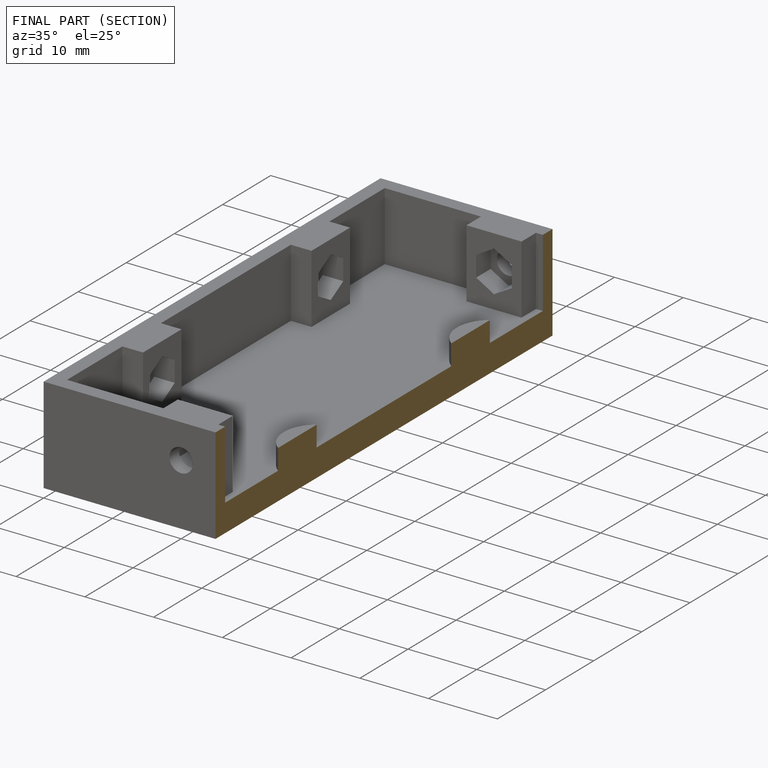
[diagram: finished part — half-section view (interior)]
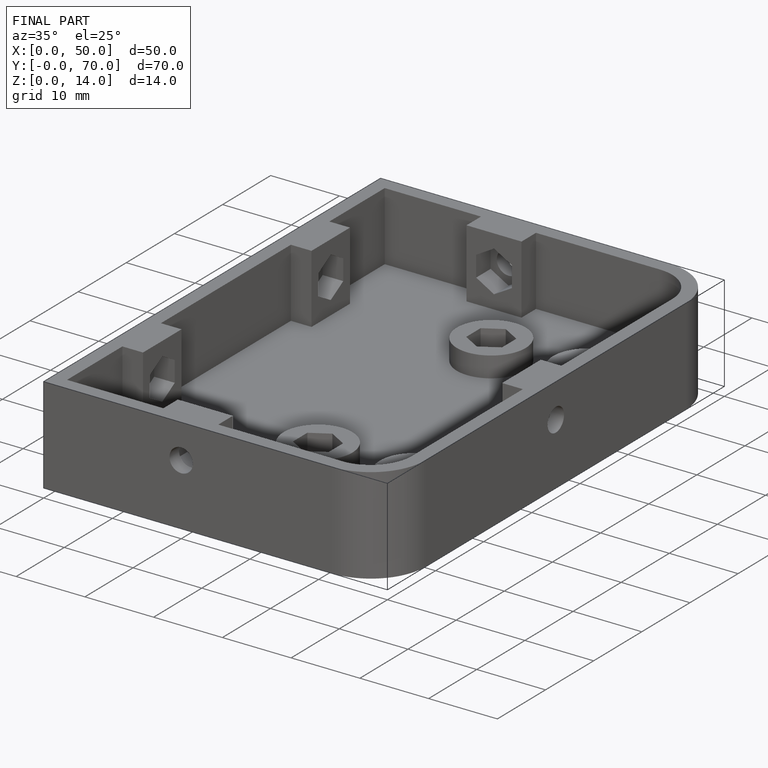
[diagram: finished part — iso view with bounding-box wireframe]
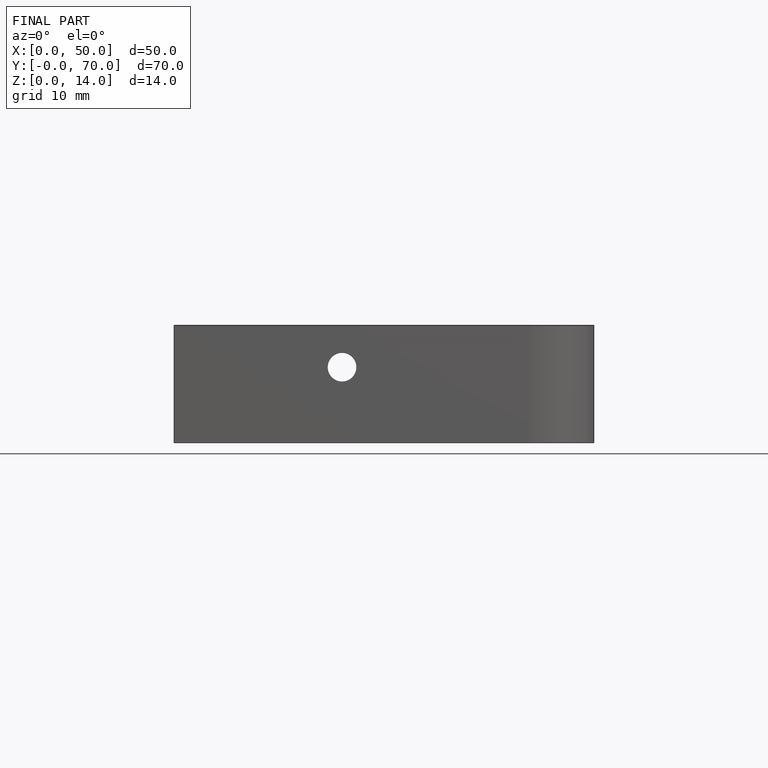
[diagram: finished part — front view with bounding-box wireframe]
